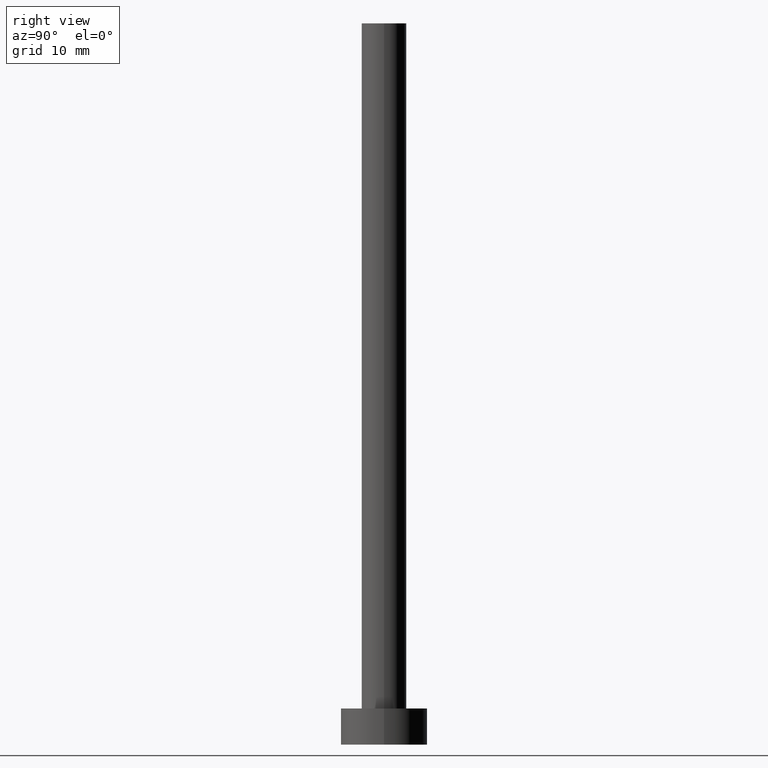
[diagram: clean part render]
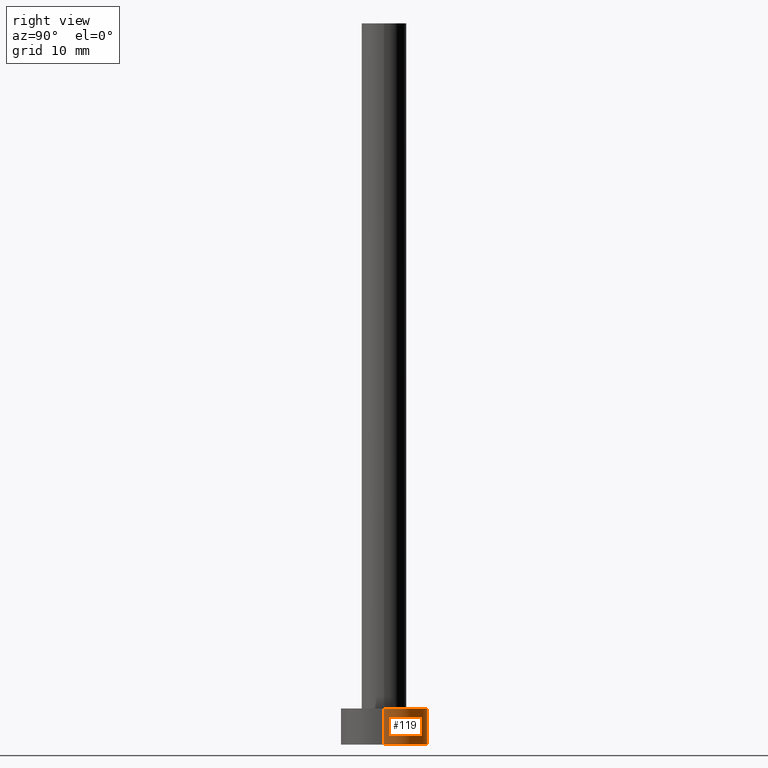
[diagram: same view with one face highlighted and labeled with its STEP entity id]
A machine part, right view. The second image highlights one B-rep face of the part: STEP entity #119.
In plain terms, the highlighted cylindrical surface (partial cylindrical patch) has radius 6 mm, axis along (-0, -0, -1).
Its self-contained STEP definition (entity closure, byte-faithful):
#3 = DIRECTION ( 'NONE',  ( -0.000000000000000000, -0.000000000000000000, -1.000000000000000000 ) ) ;
#5 = VERTEX_POINT ( 'NONE', #123 ) ;
#8 = CARTESIAN_POINT ( 'NONE',  ( -6.000000000000000888, 0.000000000000000000, 5.000000000000000000 ) ) ;
#9 = CYLINDRICAL_SURFACE ( 'NONE', #167, 6.000000000000000888 ) ;
#11 = EDGE_CURVE ( 'NONE', #116, #5, #95, .T. ) ;
#44 = EDGE_LOOP ( 'NONE', ( #65, #118, #84, #62 ) ) ;
#47 = CARTESIAN_POINT ( 'NONE',  ( 0.000000000000000000, 0.000000000000000000, 5.000000000000000000 ) ) ;
#52 = CARTESIAN_POINT ( 'NONE',  ( -6.000000000000000888, 0.000000000000000000, 0.000000000000000000 ) ) ;
#56 = EDGE_CURVE ( 'NONE', #5, #121, #80, .T. ) ;
#62 = ORIENTED_EDGE ( 'NONE', *, *, #131, .F. ) ;
#65 = ORIENTED_EDGE ( 'NONE', *, *, #154, .F. ) ;
#74 = VECTOR ( 'NONE', #3, 1000.000000000000000 ) ;
#80 = CIRCLE ( 'NONE', #245, 6.000000000000000888 ) ;
#84 = ORIENTED_EDGE ( 'NONE', *, *, #56, .T. ) ;
#87 = LINE ( 'NONE', #8, #210 ) ;
#90 = FACE_OUTER_BOUND ( 'NONE', #44, .T. ) ;
#95 = LINE ( 'NONE', #254, #74 ) ;
#103 = CARTESIAN_POINT ( 'NONE',  ( 0.000000000000000000, 0.000000000000000000, 5.000000000000000000 ) ) ;
#104 = DIRECTION ( 'NONE',  ( -0.000000000000000000, -0.000000000000000000, -1.000000000000000000 ) ) ;
#106 = DIRECTION ( 'NONE',  ( 0.000000000000000000, 0.000000000000000000, 1.000000000000000000 ) ) ;
#116 = VERTEX_POINT ( 'NONE', #243 ) ;
#118 = ORIENTED_EDGE ( 'NONE', *, *, #11, .T. ) ;
#119 = ADVANCED_FACE ( 'NONE', ( #90 ), #9, .T. ) ;
#121 = VERTEX_POINT ( 'NONE', #52 ) ;
#123 = CARTESIAN_POINT ( 'NONE',  ( 6.000000000000000888, 7.347880794884120722E-16, 0.000000000000000000 ) ) ;
#128 = DIRECTION ( 'NONE',  ( -1.000000000000000000, 0.000000000000000000, 0.000000000000000000 ) ) ;
#131 = EDGE_CURVE ( 'NONE', #237, #121, #87, .T. ) ;
#132 = DIRECTION ( 'NONE',  ( 1.000000000000000000, 0.000000000000000000, 0.000000000000000000 ) ) ;
#154 = EDGE_CURVE ( 'NONE', #116, #237, #201, .T. ) ;
#156 = CARTESIAN_POINT ( 'NONE',  ( 0.000000000000000000, 0.000000000000000000, 0.000000000000000000 ) ) ;
#159 = DIRECTION ( 'NONE',  ( 1.000000000000000000, 0.000000000000000000, 0.000000000000000000 ) ) ;
#167 = AXIS2_PLACEMENT_3D ( 'NONE', #47, #104, #128 ) ;
#187 = CARTESIAN_POINT ( 'NONE',  ( -6.000000000000000888, 0.000000000000000000, 5.000000000000000000 ) ) ;
#195 = AXIS2_PLACEMENT_3D ( 'NONE', #103, #106, #132 ) ;
#201 = CIRCLE ( 'NONE', #195, 6.000000000000000888 ) ;
#210 = VECTOR ( 'NONE', #244, 1000.000000000000000 ) ;
#233 = DIRECTION ( 'NONE',  ( 0.000000000000000000, 0.000000000000000000, 1.000000000000000000 ) ) ;
#237 = VERTEX_POINT ( 'NONE', #187 ) ;
#243 = CARTESIAN_POINT ( 'NONE',  ( 6.000000000000000888, 7.347880794884120722E-16, 5.000000000000000000 ) ) ;
#244 = DIRECTION ( 'NONE',  ( -0.000000000000000000, -0.000000000000000000, -1.000000000000000000 ) ) ;
#245 = AXIS2_PLACEMENT_3D ( 'NONE', #156, #233, #159 ) ;
#254 = CARTESIAN_POINT ( 'NONE',  ( 6.000000000000000888, 7.347880794884120722E-16, 5.000000000000000000 ) ) ;